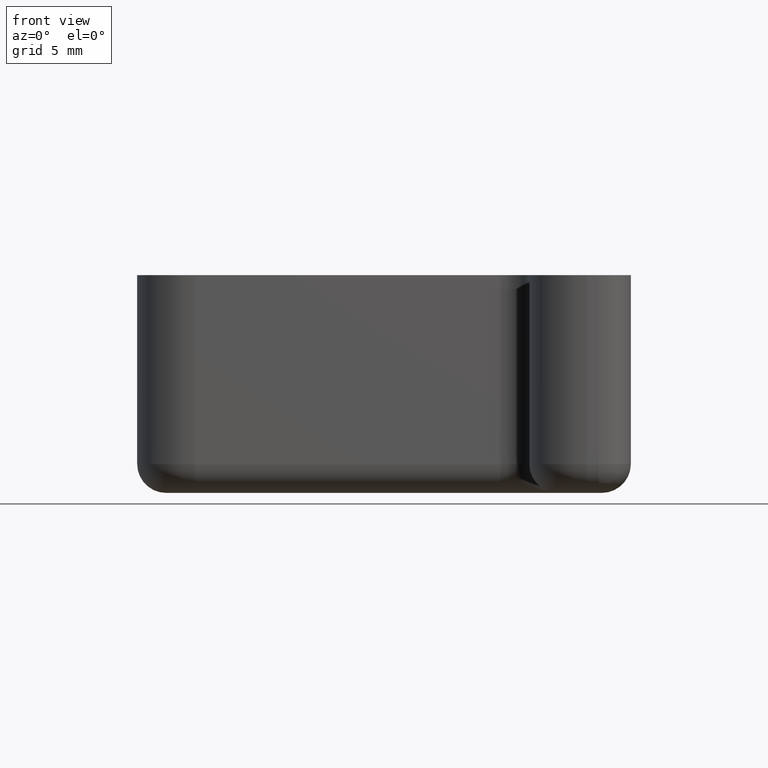
[diagram: clean part render]
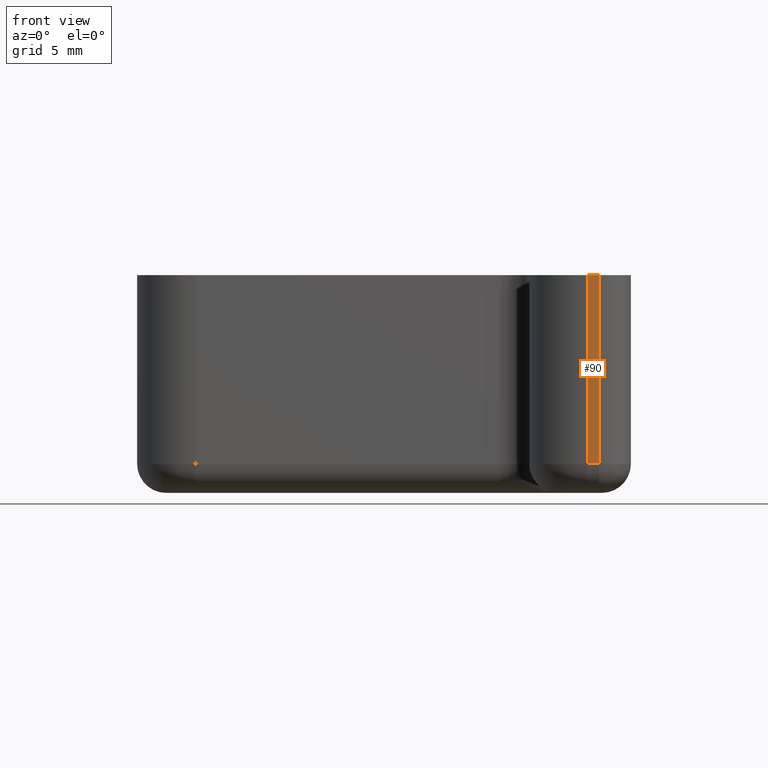
[diagram: same view with one face highlighted and labeled with its STEP entity id]
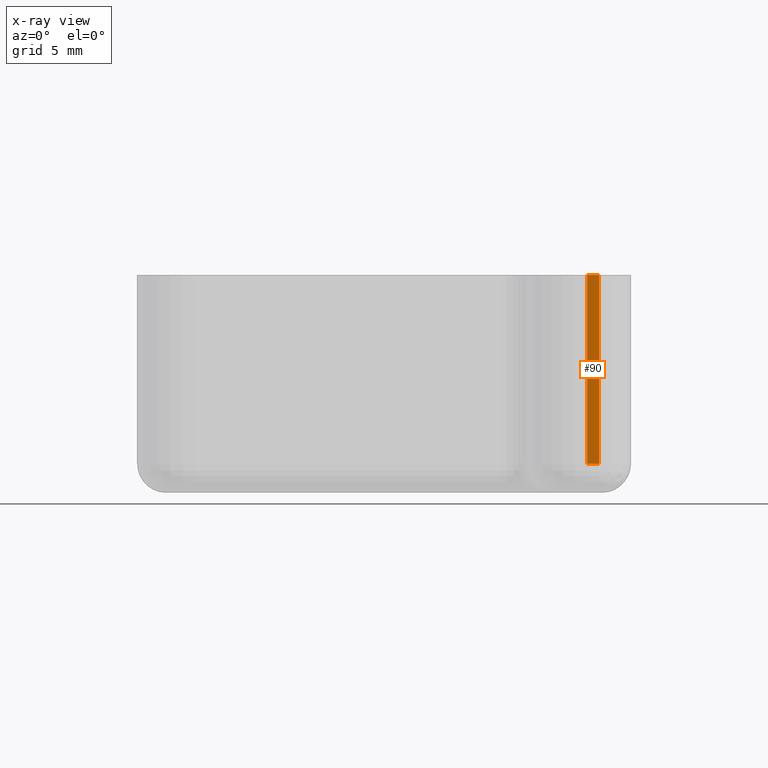
[diagram: x-ray of the same camera — body ghosted, the highlighted face saturated]
A machine part, front view. The second image highlights one B-rep face of the part: STEP entity #90.
The next image is the same camera in x-ray: the body ghosted, the highlighted face saturated — about 0% of this face is hidden behind the body in this view.
In plain terms, the highlighted planar face has unit normal (-0, -1, 0).
Its self-contained STEP definition (entity closure, byte-faithful):
#90 = ADVANCED_FACE( '', ( #146 ), #147, .T. );
#146 = FACE_OUTER_BOUND( '', #225, .T. );
#147 = PLANE( '', #226 );
#225 = EDGE_LOOP( '', ( #472, #473, #474, #475 ) );
#226 = AXIS2_PLACEMENT_3D( '', #476, #477, #478 );
#472 = ORIENTED_EDGE( '', *, *, #700, .F. );
#473 = ORIENTED_EDGE( '', *, *, #701, .T. );
#474 = ORIENTED_EDGE( '', *, *, #663, .T. );
#475 = ORIENTED_EDGE( '', *, *, #650, .F. );
#476 = CARTESIAN_POINT( '', ( -1.00000000000001, -32.0000000000000, -15.0000000000000 ) );
#477 = DIRECTION( '', ( -1.22460635382238E-016, -1.00000000000000, 0.000000000000000 ) );
#478 = DIRECTION( '', ( -1.00000000000000, 1.22460635382238E-016, 0.000000000000000 ) );
#650 = EDGE_CURVE( '', #756, #735, #758, .T. );
#663 = EDGE_CURVE( '', #783, #735, #784, .T. );
#700 = EDGE_CURVE( '', #842, #756, #844, .T. );
#701 = EDGE_CURVE( '', #842, #783, #845, .T. );
#735 = VERTEX_POINT( '', #891 );
#756 = VERTEX_POINT( '', #917 );
#758 = LINE( '', #919, #920 );
#783 = VERTEX_POINT( '', #951 );
#784 = LINE( '', #952, #953 );
#842 = VERTEX_POINT( '', #1035 );
#844 = LINE( '', #1037, #1038 );
#845 = LINE( '', #1039, #1040 );
#891 = CARTESIAN_POINT( '', ( -0.200000000000030, -32.0000000000000, 0.000000000000000 ) );
#917 = CARTESIAN_POINT( '', ( -1.00000000000001, -32.0000000000000, 0.000000000000000 ) );
#919 = CARTESIAN_POINT( '', ( -1.00000000000001, -32.0000000000000, 0.000000000000000 ) );
#920 = VECTOR( '', #1124, 1000.00000000000 );
#951 = CARTESIAN_POINT( '', ( -0.200000000000030, -32.0000000000000, -13.0000000000000 ) );
#952 = CARTESIAN_POINT( '', ( -0.200000000000030, -32.0000000000000, -15.0000000000000 ) );
#953 = VECTOR( '', #1149, 1000.00000000000 );
#1035 = CARTESIAN_POINT( '', ( -1.00000000000001, -32.0000000000000, -13.0000000000000 ) );
#1037 = CARTESIAN_POINT( '', ( -1.00000000000001, -32.0000000000000, -15.0000000000000 ) );
#1038 = VECTOR( '', #1210, 1000.00000000000 );
#1039 = CARTESIAN_POINT( '', ( -0.200000000000030, -32.0000000000000, -13.0000000000000 ) );
#1040 = VECTOR( '', #1211, 1000.00000000000 );
#1124 = DIRECTION( '', ( 1.00000000000000, -1.22460635382238E-016, 0.000000000000000 ) );
#1149 = DIRECTION( '', ( 0.000000000000000, 0.000000000000000, 1.00000000000000 ) );
#1210 = DIRECTION( '', ( 0.000000000000000, 0.000000000000000, 1.00000000000000 ) );
#1211 = DIRECTION( '', ( 1.00000000000000, -1.22460635382238E-016, 0.000000000000000 ) );